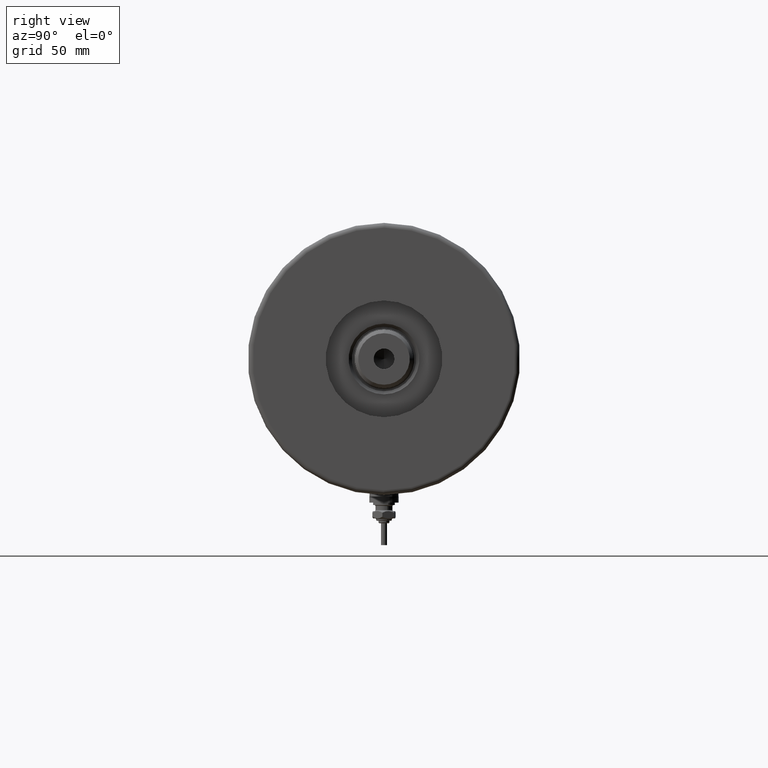
[diagram: clean part render]
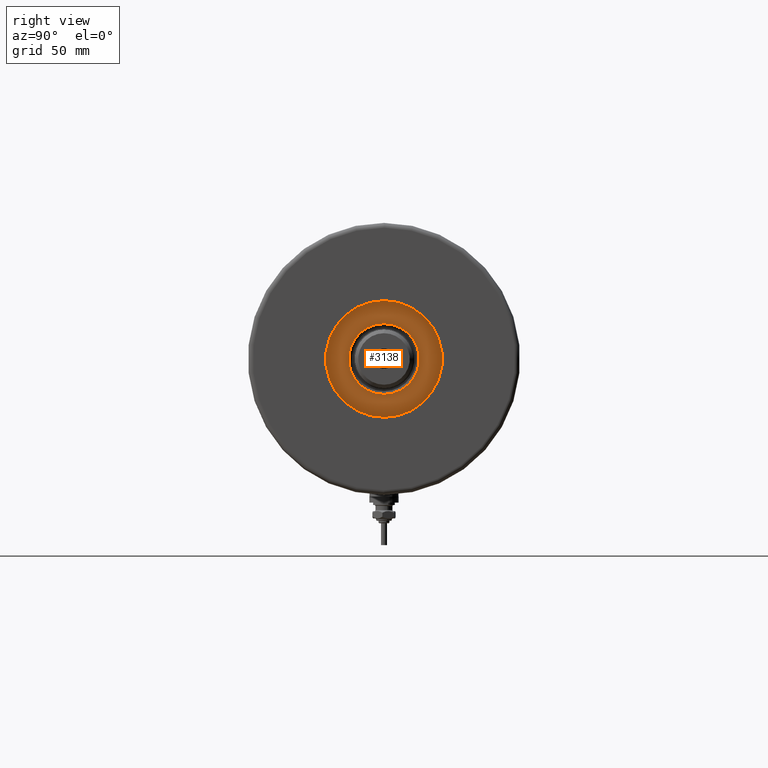
[diagram: same view with one face highlighted and labeled with its STEP entity id]
A machine part, right view. The second image highlights one B-rep face of the part: STEP entity #3138.
In plain terms, the highlighted planar face has unit normal (1, 0, -0).
Its self-contained STEP definition (entity closure, byte-faithful):
#99 = DIRECTION ( 'NONE',  ( 1.000000000000000000, 0.000000000000000000, 0.000000000000000000 ) ) ;
#168 = CARTESIAN_POINT ( 'NONE',  ( 0.000000000000000000, 0.000000000000000000, 41.00000000000000000 ) ) ;
#217 = CIRCLE ( 'NONE', #5406, 14.54999999999997939 ) ;
#236 = FACE_BOUND ( 'NONE', #3039, .T. ) ;
#265 = DIRECTION ( 'NONE',  ( 1.000000000000000000, 0.000000000000000000, -0.000000000000000000 ) ) ;
#328 = AXIS2_PLACEMENT_3D ( 'NONE', #2969, #5372, #4988 ) ;
#934 = CIRCLE ( 'NONE', #328, 24.00000000000000355 ) ;
#1066 = EDGE_CURVE ( 'NONE', #3957, #5809, #4713, .T. ) ;
#1249 = AXIS2_PLACEMENT_3D ( 'NONE', #168, #2001, #99 ) ;
#1499 = EDGE_CURVE ( 'NONE', #5809, #3957, #217, .T. ) ;
#1704 = CARTESIAN_POINT ( 'NONE',  ( 24.00000000000000355, 2.939152317953648289E-15, 41.00000000000000000 ) ) ;
#1952 = CARTESIAN_POINT ( 'NONE',  ( 14.54999999999997939, 0.000000000000000000, 41.00000000000000000 ) ) ;
#2001 = DIRECTION ( 'NONE',  ( 0.000000000000000000, 0.000000000000000000, 1.000000000000000000 ) ) ;
#2193 = DIRECTION ( 'NONE',  ( 1.000000000000000000, 0.000000000000000000, 0.000000000000000000 ) ) ;
#2557 = CARTESIAN_POINT ( 'NONE',  ( -24.00000000000000355, 0.000000000000000000, 41.00000000000000000 ) ) ;
#2969 = CARTESIAN_POINT ( 'NONE',  ( 0.000000000000000000, 0.000000000000000000, 41.00000000000000000 ) ) ;
#2982 = DIRECTION ( 'NONE',  ( -0.000000000000000000, -0.000000000000000000, -1.000000000000000000 ) ) ;
#3039 = EDGE_LOOP ( 'NONE', ( #6069, #3113 ) ) ;
#3107 = PLANE ( 'NONE',  #4826 ) ;
#3113 = ORIENTED_EDGE ( 'NONE', *, *, #1499, .T. ) ;
#3132 = CARTESIAN_POINT ( 'NONE',  ( 0.000000000000000000, 0.000000000000000000, 41.00000000000000000 ) ) ;
#3138 = ADVANCED_FACE ( 'NONE', ( #236, #3542 ), #3107, .T. ) ;
#3542 = FACE_OUTER_BOUND ( 'NONE', #3632, .T. ) ;
#3560 = CARTESIAN_POINT ( 'NONE',  ( -14.54999999999997939, 1.781861092759396721E-15, 41.00000000000000000 ) ) ;
#3632 = EDGE_LOOP ( 'NONE', ( #4849, #4059 ) ) ;
#3957 = VERTEX_POINT ( 'NONE', #1952 ) ;
#4059 = ORIENTED_EDGE ( 'NONE', *, *, #4499, .T. ) ;
#4499 = EDGE_CURVE ( 'NONE', #5347, #6109, #934, .T. ) ;
#4553 = EDGE_CURVE ( 'NONE', #6109, #5347, #4648, .T. ) ;
#4648 = CIRCLE ( 'NONE', #1249, 24.00000000000000355 ) ;
#4713 = CIRCLE ( 'NONE', #5005, 14.54999999999997939 ) ;
#4826 = AXIS2_PLACEMENT_3D ( 'NONE', #6029, #5058, #265 ) ;
#4849 = ORIENTED_EDGE ( 'NONE', *, *, #4553, .T. ) ;
#4915 = CARTESIAN_POINT ( 'NONE',  ( 0.000000000000000000, 0.000000000000000000, 41.00000000000000000 ) ) ;
#4988 = DIRECTION ( 'NONE',  ( 1.000000000000000000, 0.000000000000000000, 0.000000000000000000 ) ) ;
#5005 = AXIS2_PLACEMENT_3D ( 'NONE', #4915, #2982, #5800 ) ;
#5058 = DIRECTION ( 'NONE',  ( 0.000000000000000000, 0.000000000000000000, 1.000000000000000000 ) ) ;
#5105 = DIRECTION ( 'NONE',  ( -0.000000000000000000, -0.000000000000000000, -1.000000000000000000 ) ) ;
#5347 = VERTEX_POINT ( 'NONE', #1704 ) ;
#5372 = DIRECTION ( 'NONE',  ( 0.000000000000000000, 0.000000000000000000, 1.000000000000000000 ) ) ;
#5406 = AXIS2_PLACEMENT_3D ( 'NONE', #3132, #5105, #2193 ) ;
#5800 = DIRECTION ( 'NONE',  ( 1.000000000000000000, 0.000000000000000000, 0.000000000000000000 ) ) ;
#5809 = VERTEX_POINT ( 'NONE', #3560 ) ;
#6029 = CARTESIAN_POINT ( 'NONE',  ( 0.000000000000000000, 0.000000000000000000, 41.00000000000000000 ) ) ;
#6069 = ORIENTED_EDGE ( 'NONE', *, *, #1066, .T. ) ;
#6109 = VERTEX_POINT ( 'NONE', #2557 ) ;